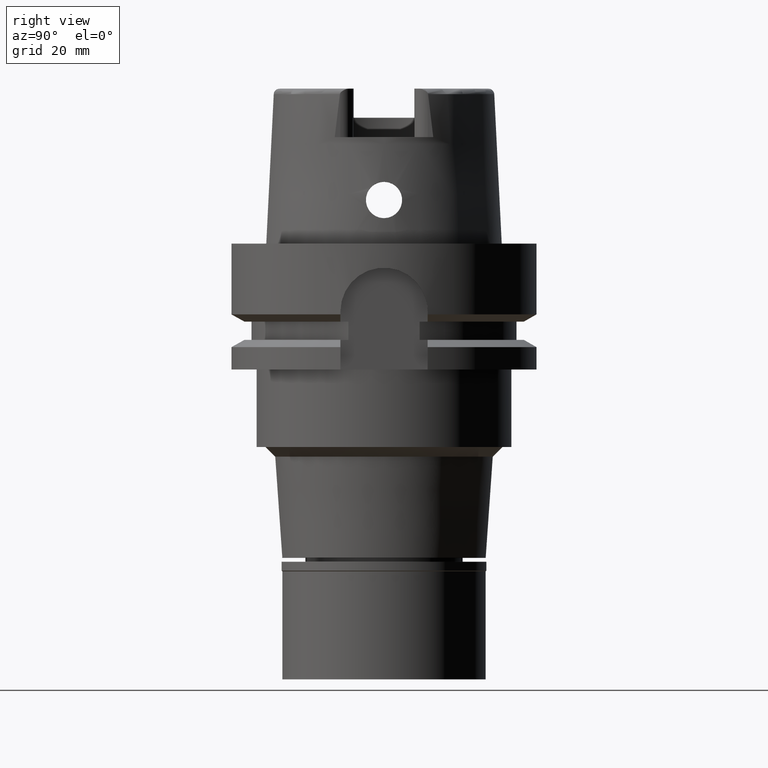
[diagram: clean part render]
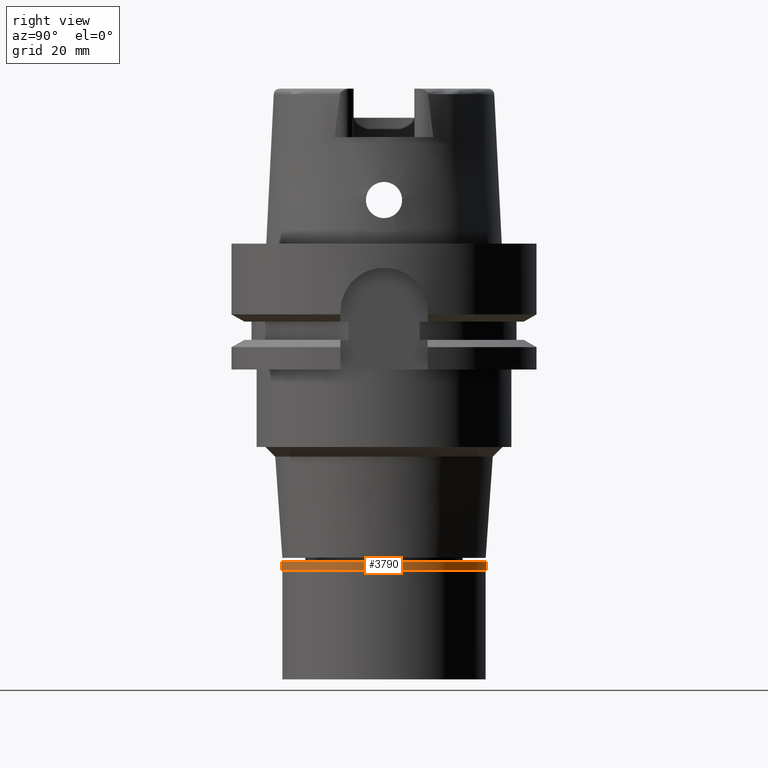
[diagram: same view with one face highlighted and labeled with its STEP entity id]
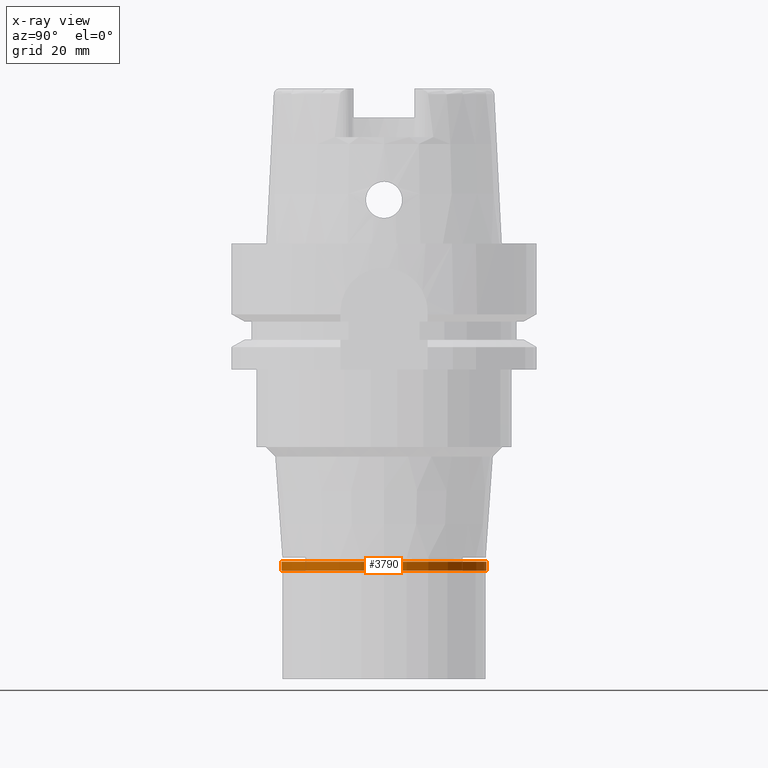
[diagram: x-ray of the same camera — body ghosted, the highlighted face saturated]
A machine part, right view. The second image highlights one B-rep face of the part: STEP entity #3790.
The next image is the same camera in x-ray: the body ghosted, the highlighted face saturated — about 0% of this face is hidden behind the body in this view.
In plain terms, the highlighted cylindrical surface (partial cylindrical patch) has radius 21.15 mm, axis along (0, 0, -1).
Its self-contained STEP definition (entity closure, byte-faithful):
#96 = VERTEX_POINT ( 'NONE', #4908 ) ;
#120 = VECTOR ( 'NONE', #2841, 1000.000000000000000 ) ;
#287 = CARTESIAN_POINT ( 'NONE',  ( 0.0000000000000000000, 0.0000000000000000000, -1.850000000000000089 ) ) ;
#327 = DIRECTION ( 'NONE',  ( 0.0000000000000000000, 0.0000000000000000000, -1.000000000000000000 ) ) ;
#416 = DIRECTION ( 'NONE',  ( 0.0000000000000000000, 0.0000000000000000000, -1.000000000000000000 ) ) ;
#514 = CARTESIAN_POINT ( 'NONE',  ( 0.0000000000000000000, 0.0000000000000000000, 0.0000000000000000000 ) ) ;
#625 = CARTESIAN_POINT ( 'NONE',  ( 0.0000000000000000000, 21.14999999999999858, 0.0000000000000000000 ) ) ;
#748 = CARTESIAN_POINT ( 'NONE',  ( 0.0000000000000000000, 0.0000000000000000000, 0.0000000000000000000 ) ) ;
#751 = CARTESIAN_POINT ( 'NONE',  ( 0.0000000000000000000, -21.14999999999999858, 0.0000000000000000000 ) ) ;
#927 = EDGE_LOOP ( 'NONE', ( #5273, #1367, #2566, #5612 ) ) ;
#1121 = DIRECTION ( 'NONE',  ( 0.0000000000000000000, 0.0000000000000000000, -1.000000000000000000 ) ) ;
#1367 = ORIENTED_EDGE ( 'NONE', *, *, #2581, .T. ) ;
#1593 = CIRCLE ( 'NONE', #4770, 21.14999999999999858 ) ;
#2149 = DIRECTION ( 'NONE',  ( 0.0000000000000000000, 1.000000000000000000, 0.0000000000000000000 ) ) ;
#2481 = DIRECTION ( 'NONE',  ( 0.0000000000000000000, -1.000000000000000000, 0.0000000000000000000 ) ) ;
#2566 = ORIENTED_EDGE ( 'NONE', *, *, #2967, .T. ) ;
#2581 = EDGE_CURVE ( 'NONE', #5286, #96, #4646, .T. ) ;
#2841 = DIRECTION ( 'NONE',  ( 0.0000000000000000000, 0.0000000000000000000, -1.000000000000000000 ) ) ;
#2967 = EDGE_CURVE ( 'NONE', #96, #4073, #1593, .T. ) ;
#3144 = DIRECTION ( 'NONE',  ( 0.0000000000000000000, -1.000000000000000000, 0.0000000000000000000 ) ) ;
#3371 = AXIS2_PLACEMENT_3D ( 'NONE', #514, #416, #2149 ) ;
#3379 = AXIS2_PLACEMENT_3D ( 'NONE', #748, #1121, #2481 ) ;
#3515 = CARTESIAN_POINT ( 'NONE',  ( 0.0000000000000000000, -21.14999999999999858, 0.0000000000000000000 ) ) ;
#3742 = LINE ( 'NONE', #625, #120 ) ;
#3790 = ADVANCED_FACE ( 'NONE', ( #5363 ), #4994, .T. ) ;
#3822 = CARTESIAN_POINT ( 'NONE',  ( 0.0000000000000000000, 21.14999999999999858, -1.850000000000000089 ) ) ;
#3922 = CIRCLE ( 'NONE', #3371, 21.14999999999999858 ) ;
#4001 = DIRECTION ( 'NONE',  ( 0.0000000000000000000, 0.0000000000000000000, 1.000000000000000000 ) ) ;
#4073 = VERTEX_POINT ( 'NONE', #3822 ) ;
#4154 = CARTESIAN_POINT ( 'NONE',  ( 0.0000000000000000000, 21.14999999999999858, 0.0000000000000000000 ) ) ;
#4636 = EDGE_CURVE ( 'NONE', #4763, #5286, #3922, .T. ) ;
#4646 = LINE ( 'NONE', #751, #5058 ) ;
#4763 = VERTEX_POINT ( 'NONE', #4154 ) ;
#4770 = AXIS2_PLACEMENT_3D ( 'NONE', #287, #4001, #3144 ) ;
#4831 = EDGE_CURVE ( 'NONE', #4763, #4073, #3742, .T. ) ;
#4908 = CARTESIAN_POINT ( 'NONE',  ( 0.0000000000000000000, -21.14999999999999858, -1.850000000000000089 ) ) ;
#4994 = CYLINDRICAL_SURFACE ( 'NONE', #3379, 21.14999999999999858 ) ;
#5058 = VECTOR ( 'NONE', #327, 1000.000000000000000 ) ;
#5273 = ORIENTED_EDGE ( 'NONE', *, *, #4636, .T. ) ;
#5286 = VERTEX_POINT ( 'NONE', #3515 ) ;
#5363 = FACE_OUTER_BOUND ( 'NONE', #927, .T. ) ;
#5612 = ORIENTED_EDGE ( 'NONE', *, *, #4831, .F. ) ;